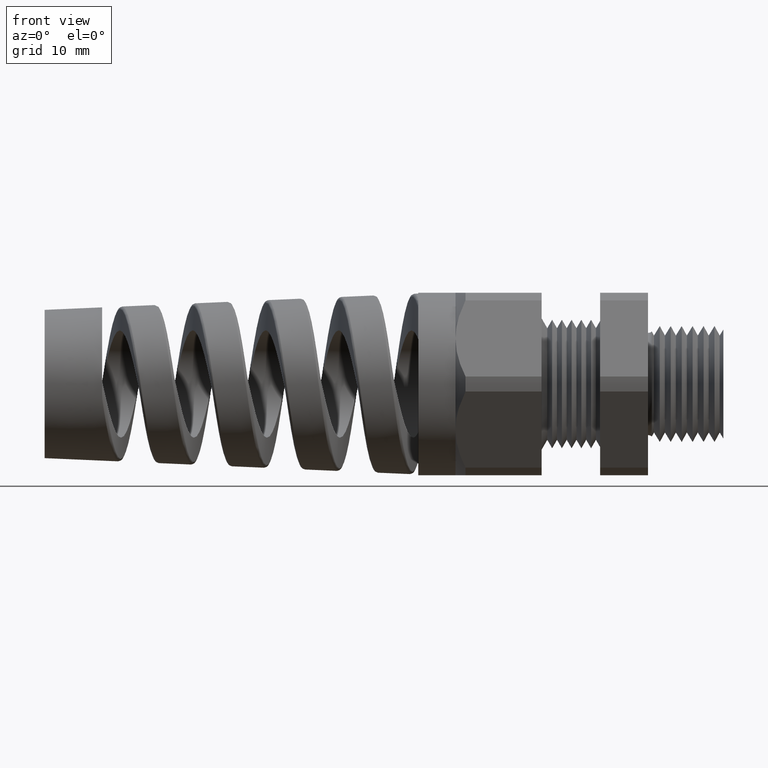
[diagram: clean part render]
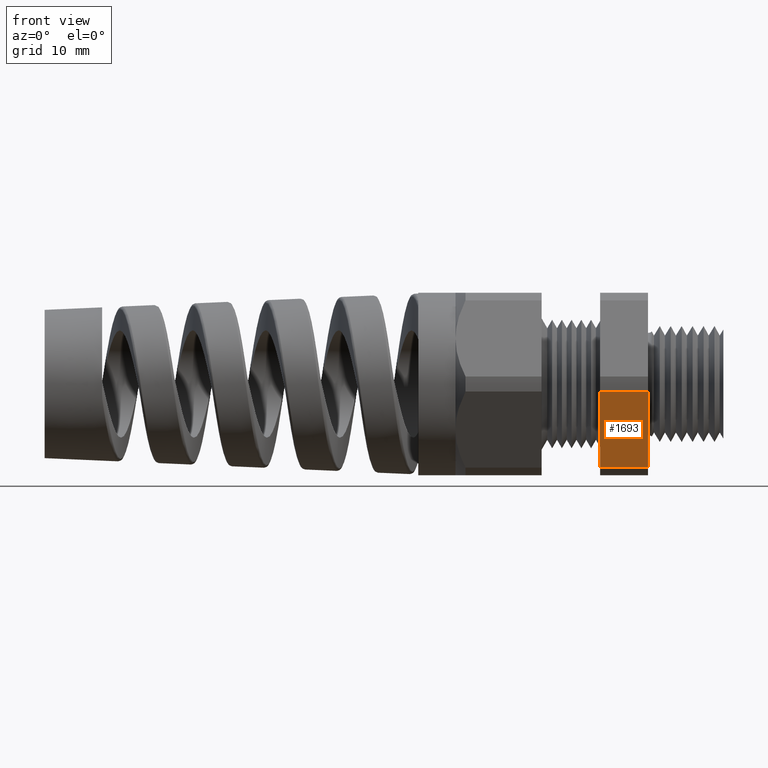
[diagram: same view with one face highlighted and labeled with its STEP entity id]
A machine part, front view. The second image highlights one B-rep face of the part: STEP entity #1693.
In plain terms, the highlighted planar face has unit normal (0, -0.866, -0.5).
Its self-contained STEP definition (entity closure, byte-faithful):
#228 = VERTEX_POINT ( 'NONE', #1335 ) ;
#230 = EDGE_CURVE ( 'NONE', #228, #231, #1334, .T. ) ;
#231 = VERTEX_POINT ( 'NONE', #1330 ) ;
#1330 = CARTESIAN_POINT ( 'NONE',  ( -0.3100000000000000000, -0.2344281053908204800, -0.3439586107409877700 ) ) ;
#1331 = DIRECTION ( 'NONE',  ( 0.0000000000000000000, 0.5000000000000002200, -0.8660254037844383700 ) ) ;
#1332 = VECTOR ( 'NONE', #1331, 39.37007874015748100 ) ;
#1333 = CARTESIAN_POINT ( 'NONE',  ( -0.3100000000000000000, -0.1372595264191642800, -0.5122595264191648300 ) ) ;
#1334 = LINE ( 'NONE', #1333, #1332 ) ;
#1335 = CARTESIAN_POINT ( 'NONE',  ( -0.3100000000000000000, -0.4150909474475088000, -0.03104138925901253600 ) ) ;
#1371 = VERTEX_POINT ( 'NONE', #5420 ) ;
#1419 = VERTEX_POINT ( 'NONE', #5441 ) ;
#1476 = EDGE_CURVE ( 'NONE', #1419, #1371, #5435, .T. ) ;
#1662 = ORIENTED_EDGE ( 'NONE', *, *, #230, .F. ) ;
#1687 = ORIENTED_EDGE ( 'NONE', *, *, #1692, .F. ) ;
#1688 = ORIENTED_EDGE ( 'NONE', *, *, #1476, .F. ) ;
#1689 = ORIENTED_EDGE ( 'NONE', *, *, #1726, .T. ) ;
#1691 = EDGE_LOOP ( 'NONE', ( #1689, #1688, #1687, #1662 ) ) ;
#1692 = EDGE_CURVE ( 'NONE', #231, #1419, #5565, .T. ) ;
#1693 = ADVANCED_FACE ( 'NONE', ( #5561 ), #5560, .T. ) ;
#1726 = EDGE_CURVE ( 'NONE', #228, #1371, #5555, .T. ) ;
#5420 = CARTESIAN_POINT ( 'NONE',  ( -0.5068503937007874400, -0.4150909474475088000, -0.03104138925901253600 ) ) ;
#5432 = DIRECTION ( 'NONE',  ( 0.0000000000000000000, -0.5000000000000002200, 0.8660254037844383700 ) ) ;
#5433 = VECTOR ( 'NONE', #5432, 39.37007874015748100 ) ;
#5434 = CARTESIAN_POINT ( 'NONE',  ( -0.5068503937007874400, -0.1372595264191642800, -0.5122595264191648300 ) ) ;
#5435 = LINE ( 'NONE', #5434, #5433 ) ;
#5441 = CARTESIAN_POINT ( 'NONE',  ( -0.5068503937007874400, -0.2344281053908204800, -0.3439586107409877700 ) ) ;
#5552 = DIRECTION ( 'NONE',  ( -1.000000000000000000, 0.0000000000000000000, 0.0000000000000000000 ) ) ;
#5553 = VECTOR ( 'NONE', #5552, 39.37007874015748100 ) ;
#5554 = CARTESIAN_POINT ( 'NONE',  ( 0.0000000000000000000, -0.4150909474475088000, -0.03104138925901253600 ) ) ;
#5555 = LINE ( 'NONE', #5554, #5553 ) ;
#5556 = DIRECTION ( 'NONE',  ( 0.0000000000000000000, 0.5000000000000002200, -0.8660254037844384900 ) ) ;
#5557 = DIRECTION ( 'NONE',  ( 0.0000000000000000000, -0.8660254037844386000, -0.5000000000000003300 ) ) ;
#5558 = CARTESIAN_POINT ( 'NONE',  ( 0.0000000000000000000, -0.2344281053908205700, -0.3439586107409877100 ) ) ;
#5559 = AXIS2_PLACEMENT_3D ( 'NONE', #5558, #5557, #5556 ) ;
#5560 = PLANE ( 'NONE',  #5559 ) ;
#5561 = FACE_OUTER_BOUND ( 'NONE', #1691, .T. ) ;
#5562 = DIRECTION ( 'NONE',  ( -1.000000000000000000, 0.0000000000000000000, 0.0000000000000000000 ) ) ;
#5563 = VECTOR ( 'NONE', #5562, 39.37007874015748100 ) ;
#5564 = CARTESIAN_POINT ( 'NONE',  ( 0.0000000000000000000, -0.2344281053908204800, -0.3439586107409877700 ) ) ;
#5565 = LINE ( 'NONE', #5564, #5563 ) ;